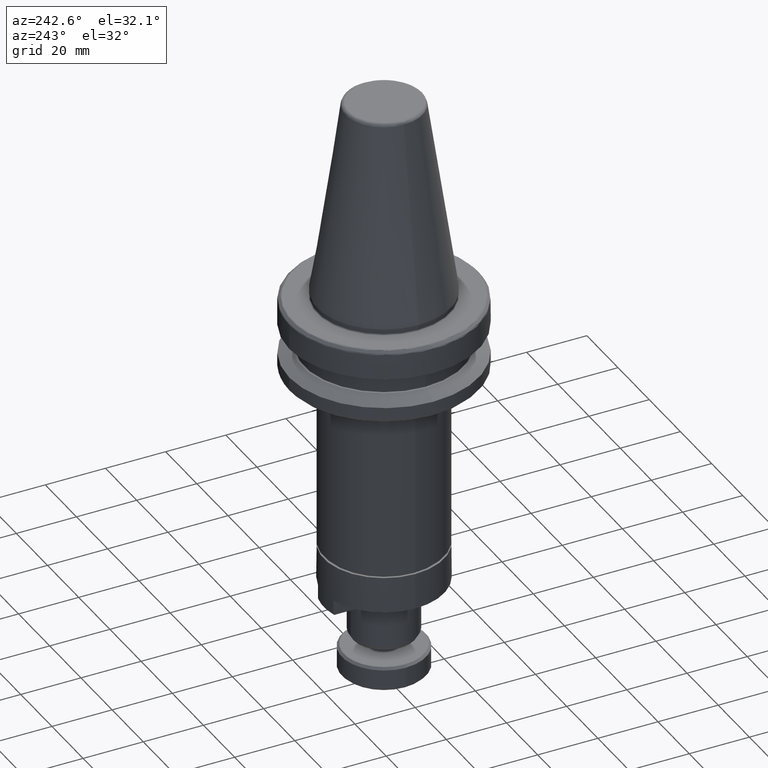
[diagram: clean part render]
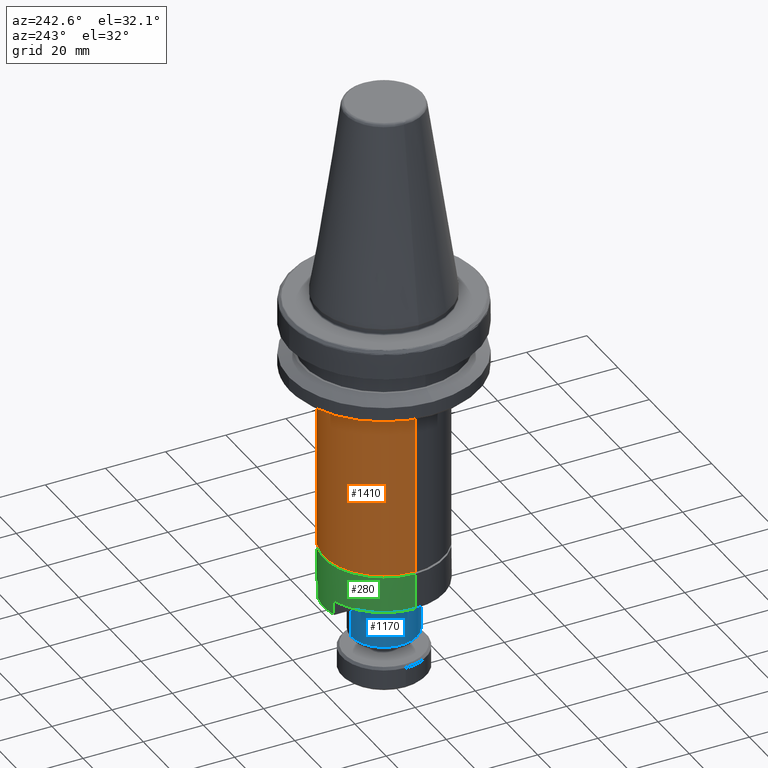
[diagram: same view with three faces highlighted in distinct colors, each labeled with its STEP entity id]
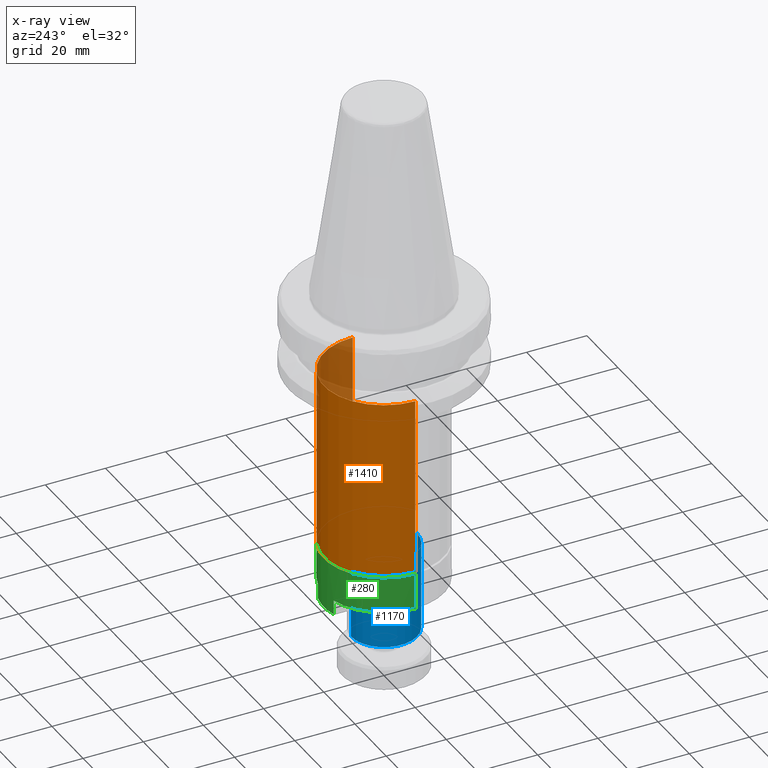
[diagram: x-ray of the same camera — body ghosted, the three highlighted faces saturated]
A machine part, auxiliary view with three faces highlighted in distinct colors.
The next image is the same camera in x-ray (body ghosted, the three faces saturated) — at least one of them is partly hidden behind the body in this view.
Their STEP definitions:

[orange] entity #1410 — the highlighted cylindrical surface (partial cylindrical patch) has radius 20 mm, axis along (0, 0, 1).
#56 = CIRCLE ( 'NONE', #1321, 20.00000000000000000 ) ;
#99 = LINE ( 'NONE', #3362, #1190 ) ;
#160 = DIRECTION ( 'NONE',  ( 0.0000000000000000000, 0.0000000000000000000, 1.000000000000000000 ) ) ;
#178 = DIRECTION ( 'NONE',  ( 0.0000000000000000000, 0.0000000000000000000, 1.000000000000000000 ) ) ;
#371 = FACE_OUTER_BOUND ( 'NONE', #3667, .T. ) ;
#424 = CARTESIAN_POINT ( 'NONE',  ( -20.00000000000000000, 2.449293598294706500E-015, -80.96158881059201900 ) ) ;
#425 = AXIS2_PLACEMENT_3D ( 'NONE', #1613, #3632, #1907 ) ;
#439 = EDGE_CURVE ( 'NONE', #2145, #856, #99, .T. ) ;
#440 = CARTESIAN_POINT ( 'NONE',  ( 0.0000000000000000000, 0.0000000000000000000, -80.96158881059201900 ) ) ;
#823 = CIRCLE ( 'NONE', #425, 20.00000000000000000 ) ;
#856 = VERTEX_POINT ( 'NONE', #3367 ) ;
#1070 = CARTESIAN_POINT ( 'NONE',  ( -20.00000000005410400, -6.153102855459935800E-009, -21.56158881043733900 ) ) ;
#1190 = VECTOR ( 'NONE', #160, 1000.000000000000000 ) ;
#1200 = CARTESIAN_POINT ( 'NONE',  ( -20.00000000000000000, 2.449293598294706500E-015, -80.96158881059197700 ) ) ;
#1279 = EDGE_CURVE ( 'NONE', #3093, #2773, #3564, .T. ) ;
#1321 = AXIS2_PLACEMENT_3D ( 'NONE', #3090, #1345, #3371 ) ;
#1345 = DIRECTION ( 'NONE',  ( 0.0000000000000000000, 0.0000000000000000000, 1.000000000000000000 ) ) ;
#1410 = ADVANCED_FACE ( 'NONE', ( #371 ), #3181, .T. ) ;
#1613 = CARTESIAN_POINT ( 'NONE',  ( 0.0000000000000000000, 0.0000000000000000000, -21.56158881059203100 ) ) ;
#1710 = DIRECTION ( 'NONE',  ( 1.000000000000000000, 0.0000000000000000000, 0.0000000000000000000 ) ) ;
#1754 = ORIENTED_EDGE ( 'NONE', *, *, #3435, .T. ) ;
#1907 = DIRECTION ( 'NONE',  ( 1.000000000000000000, 0.0000000000000000000, 1.734723475976807100E-016 ) ) ;
#1931 = ORIENTED_EDGE ( 'NONE', *, *, #2693, .F. ) ;
#1964 = ORIENTED_EDGE ( 'NONE', *, *, #439, .F. ) ;
#2145 = VERTEX_POINT ( 'NONE', #2521 ) ;
#2521 = CARTESIAN_POINT ( 'NONE',  ( 20.00000000000000000, 0.0000000000000000000, -80.96158881059201900 ) ) ;
#2693 = EDGE_CURVE ( 'NONE', #856, #2773, #823, .T. ) ;
#2773 = VERTEX_POINT ( 'NONE', #1070 ) ;
#3090 = CARTESIAN_POINT ( 'NONE',  ( 0.0000000000000000000, 0.0000000000000000000, -80.96158881059197700 ) ) ;
#3093 = VERTEX_POINT ( 'NONE', #1200 ) ;
#3098 = ORIENTED_EDGE ( 'NONE', *, *, #1279, .T. ) ;
#3111 = AXIS2_PLACEMENT_3D ( 'NONE', #440, #3588, #1710 ) ;
#3181 = CYLINDRICAL_SURFACE ( 'NONE', #3111, 20.00000000000000000 ) ;
#3362 = CARTESIAN_POINT ( 'NONE',  ( 20.00000000000000000, 0.0000000000000000000, -80.96158881059201900 ) ) ;
#3367 = CARTESIAN_POINT ( 'NONE',  ( 20.00000000005410100, -8.979362842873303400E-010, -21.56158881059203100 ) ) ;
#3371 = DIRECTION ( 'NONE',  ( 1.000000000000000000, 0.0000000000000000000, -2.775557561562891400E-015 ) ) ;
#3435 = EDGE_CURVE ( 'NONE', #2145, #3093, #56, .T. ) ;
#3564 = LINE ( 'NONE', #424, #3648 ) ;
#3588 = DIRECTION ( 'NONE',  ( 0.0000000000000000000, 0.0000000000000000000, 1.000000000000000000 ) ) ;
#3632 = DIRECTION ( 'NONE',  ( 0.0000000000000000000, 0.0000000000000000000, 1.000000000000000000 ) ) ;
#3648 = VECTOR ( 'NONE', #178, 1000.000000000000000 ) ;
#3667 = EDGE_LOOP ( 'NONE', ( #1754, #3098, #1931, #1964 ) ) ;

[blue] entity #1170 — the highlighted cylindrical surface (partial cylindrical patch) has radius 11 mm, axis along (0, -0, 1).
#21 = VERTEX_POINT ( 'NONE', #2839 ) ;
#144 = FACE_OUTER_BOUND ( 'NONE', #2276, .T. ) ;
#210 = AXIS2_PLACEMENT_3D ( 'NONE', #2810, #3334, #2684 ) ;
#342 = VERTEX_POINT ( 'NONE', #2753 ) ;
#502 = CARTESIAN_POINT ( 'NONE',  ( 0.0000000000000000000, -11.00000000000000000, -111.4893456245920800 ) ) ;
#634 = DIRECTION ( 'NONE',  ( 0.0000000000000000000, -6.308085367188390200E-016, 1.000000000000000000 ) ) ;
#642 = AXIS2_PLACEMENT_3D ( 'NONE', #2900, #1995, #1197 ) ;
#663 = AXIS2_PLACEMENT_3D ( 'NONE', #1691, #3427, #1414 ) ;
#828 = EDGE_CURVE ( 'NONE', #342, #21, #1300, .T. ) ;
#1021 = EDGE_CURVE ( 'NONE', #342, #2379, #2905, .T. ) ;
#1170 = ADVANCED_FACE ( 'NONE', ( #144 ), #3689, .T. ) ;
#1195 = CARTESIAN_POINT ( 'NONE',  ( 1.347111479062088400E-015, 11.00000000000000000, -111.4893456245920000 ) ) ;
#1197 = DIRECTION ( 'NONE',  ( 0.0000000000000000000, -1.000000000000000000, 0.0000000000000000000 ) ) ;
#1300 = LINE ( 'NONE', #1195, #1612 ) ;
#1414 = DIRECTION ( 'NONE',  ( 1.000000000000000000, 0.0000000000000000000, 5.046468293750711400E-015 ) ) ;
#1486 = ORIENTED_EDGE ( 'NONE', *, *, #2396, .T. ) ;
#1593 = VERTEX_POINT ( 'NONE', #1879 ) ;
#1612 = VECTOR ( 'NONE', #634, 1000.000000000000000 ) ;
#1631 = ORIENTED_EDGE ( 'NONE', *, *, #828, .F. ) ;
#1667 = LINE ( 'NONE', #3449, #3188 ) ;
#1691 = CARTESIAN_POINT ( 'NONE',  ( 0.0000000000000000000, 0.0000000000000000000, -111.4893456245920800 ) ) ;
#1805 = ORIENTED_EDGE ( 'NONE', *, *, #1021, .T. ) ;
#1829 = EDGE_CURVE ( 'NONE', #21, #1593, #3297, .T. ) ;
#1879 = CARTESIAN_POINT ( 'NONE',  ( 0.0000000000000000000, -11.00000000000001800, -81.96158881059201900 ) ) ;
#1995 = DIRECTION ( 'NONE',  ( 0.0000000000000000000, -6.308085367188390200E-016, 1.000000000000000000 ) ) ;
#2276 = EDGE_LOOP ( 'NONE', ( #1631, #1805, #1486, #2691 ) ) ;
#2379 = VERTEX_POINT ( 'NONE', #502 ) ;
#2396 = EDGE_CURVE ( 'NONE', #2379, #1593, #1667, .T. ) ;
#2684 = DIRECTION ( 'NONE',  ( 0.0000000000000000000, -1.000000000000000000, -1.261617073437677900E-015 ) ) ;
#2691 = ORIENTED_EDGE ( 'NONE', *, *, #1829, .F. ) ;
#2753 = CARTESIAN_POINT ( 'NONE',  ( 1.347111479062089600E-015, 11.00000000000000000, -111.4893456245920800 ) ) ;
#2781 = DIRECTION ( 'NONE',  ( 0.0000000000000000000, -6.308085367188390200E-016, 1.000000000000000000 ) ) ;
#2810 = CARTESIAN_POINT ( 'NONE',  ( 0.0000000000000000000, 0.0000000000000000000, -111.4893456245920200 ) ) ;
#2839 = CARTESIAN_POINT ( 'NONE',  ( 1.347111479062088400E-015, 10.99999999999998000, -81.96158881059201900 ) ) ;
#2900 = CARTESIAN_POINT ( 'NONE',  ( 0.0000000000000000000, -1.862636106842907400E-014, -81.96158881059201900 ) ) ;
#2905 = CIRCLE ( 'NONE', #663, 11.00000000000000000 ) ;
#3188 = VECTOR ( 'NONE', #2781, 1000.000000000000000 ) ;
#3297 = CIRCLE ( 'NONE', #642, 11.00000000000000000 ) ;
#3334 = DIRECTION ( 'NONE',  ( 0.0000000000000000000, -6.308085367188390200E-016, 1.000000000000000000 ) ) ;
#3427 = DIRECTION ( 'NONE',  ( 0.0000000000000000000, 0.0000000000000000000, 1.000000000000000000 ) ) ;
#3449 = CARTESIAN_POINT ( 'NONE',  ( 0.0000000000000000000, -11.00000000000000000, -111.4893456245920300 ) ) ;
#3689 = CYLINDRICAL_SURFACE ( 'NONE', #210, 11.00000000000000000 ) ;

[green] entity #280 — the highlighted cylindrical surface (partial cylindrical patch) has radius 20 mm, axis along (0, 0, 1).
#36 = EDGE_LOOP ( 'NONE', ( #964, #2343, #827, #1480, #325, #2277, #3699, #2951 ) ) ;
#96 = CARTESIAN_POINT ( 'NONE',  ( 0.0000000000000000000, -7.307522642552299900E-014, -93.76158880579203000 ) ) ;
#180 = CARTESIAN_POINT ( 'NONE',  ( 0.0000000000000000000, -7.307522642552299900E-014, -98.56158881059201300 ) ) ;
#280 = ADVANCED_FACE ( 'NONE', ( #3615 ), #1749, .T. ) ;
#325 = ORIENTED_EDGE ( 'NONE', *, *, #3079, .T. ) ;
#365 = DIRECTION ( 'NONE',  ( 0.0000000000000000000, 0.0000000000000000000, 1.000000000000000000 ) ) ;
#474 = DIRECTION ( 'NONE',  ( 1.000000000000000000, 5.329070518200751400E-015, 0.0000000000000000000 ) ) ;
#553 = AXIS2_PLACEMENT_3D ( 'NONE', #180, #2200, #474 ) ;
#664 = EDGE_CURVE ( 'NONE', #1048, #3228, #1043, .T. ) ;
#685 = CIRCLE ( 'NONE', #1000, 20.00000000000000000 ) ;
#719 = DIRECTION ( 'NONE',  ( -0.0000000000000000000, -0.0000000000000000000, 1.000000000000000000 ) ) ;
#755 = EDGE_CURVE ( 'NONE', #1505, #2119, #1212, .T. ) ;
#758 = CARTESIAN_POINT ( 'NONE',  ( 4.999999999821269200, 19.36491673051400400, -98.56158881077075800 ) ) ;
#811 = AXIS2_PLACEMENT_3D ( 'NONE', #2665, #927, #2955 ) ;
#822 = DIRECTION ( 'NONE',  ( -0.0000000000000000000, -0.0000000000000000000, -1.000000000000000000 ) ) ;
#827 = ORIENTED_EDGE ( 'NONE', *, *, #2772, .T. ) ;
#899 = CARTESIAN_POINT ( 'NONE',  ( 5.000000000000000000, 19.36491673101847200, -93.76158880819201600 ) ) ;
#918 = VECTOR ( 'NONE', #942, 1000.000000000000000 ) ;
#927 = DIRECTION ( 'NONE',  ( 0.0000000000000000000, 0.0000000000000000000, 1.000000000000000000 ) ) ;
#942 = DIRECTION ( 'NONE',  ( 0.0000000000000000000, 0.0000000000000000000, 1.000000000000000000 ) ) ;
#951 = VERTEX_POINT ( 'NONE', #2007 ) ;
#964 = ORIENTED_EDGE ( 'NONE', *, *, #664, .F. ) ;
#1000 = AXIS2_PLACEMENT_3D ( 'NONE', #1350, #3374, #1638 ) ;
#1043 = CIRCLE ( 'NONE', #3130, 20.00000000000000000 ) ;
#1048 = VERTEX_POINT ( 'NONE', #2591 ) ;
#1108 = EDGE_CURVE ( 'NONE', #1446, #3029, #3031, .T. ) ;
#1206 = EDGE_CURVE ( 'NONE', #3228, #951, #1525, .T. ) ;
#1212 = LINE ( 'NONE', #1509, #1266 ) ;
#1266 = VECTOR ( 'NONE', #365, 1000.000000000000000 ) ;
#1350 = CARTESIAN_POINT ( 'NONE',  ( 0.0000000000000000000, -7.307522642552299900E-014, -81.76158881059203100 ) ) ;
#1353 = VERTEX_POINT ( 'NONE', #1584 ) ;
#1446 = VERTEX_POINT ( 'NONE', #758 ) ;
#1480 = ORIENTED_EDGE ( 'NONE', *, *, #755, .F. ) ;
#1505 = VERTEX_POINT ( 'NONE', #1507 ) ;
#1507 = CARTESIAN_POINT ( 'NONE',  ( 20.00000000000000000, -7.307522642552299900E-014, -93.76158880579203000 ) ) ;
#1509 = CARTESIAN_POINT ( 'NONE',  ( 20.00000000000000000, -7.307522642552299900E-014, -98.56158881059202800 ) ) ;
#1525 = LINE ( 'NONE', #2867, #2610 ) ;
#1584 = CARTESIAN_POINT ( 'NONE',  ( -20.00000000000000000, -7.062593282722829600E-014, -81.76158881059203100 ) ) ;
#1638 = DIRECTION ( 'NONE',  ( 1.000000000000000000, 0.0000000000000000000, 0.0000000000000000000 ) ) ;
#1639 = AXIS2_PLACEMENT_3D ( 'NONE', #1782, #3295, #2155 ) ;
#1749 = CYLINDRICAL_SURFACE ( 'NONE', #1639, 20.00000000000000000 ) ;
#1782 = CARTESIAN_POINT ( 'NONE',  ( 0.0000000000000000000, -7.307522642552299900E-014, -98.56158881059202800 ) ) ;
#1820 = DIRECTION ( 'NONE',  ( -0.0000000000000000000, -0.0000000000000000000, -1.000000000000000000 ) ) ;
#1836 = CARTESIAN_POINT ( 'NONE',  ( -5.000000000305115900, 19.36491673087945000, -93.76158880819201600 ) ) ;
#2007 = CARTESIAN_POINT ( 'NONE',  ( -5.000000000610233600, 19.36491673087945000, -98.56158881059201300 ) ) ;
#2119 = VERTEX_POINT ( 'NONE', #3256 ) ;
#2155 = DIRECTION ( 'NONE',  ( 1.000000000000000000, 0.0000000000000000000, 0.0000000000000000000 ) ) ;
#2200 = DIRECTION ( 'NONE',  ( -0.0000000000000000000, -0.0000000000000000000, -1.000000000000000000 ) ) ;
#2277 = ORIENTED_EDGE ( 'NONE', *, *, #1108, .F. ) ;
#2343 = ORIENTED_EDGE ( 'NONE', *, *, #2350, .T. ) ;
#2350 = EDGE_CURVE ( 'NONE', #1048, #1353, #3518, .T. ) ;
#2416 = CIRCLE ( 'NONE', #811, 20.00000000000000000 ) ;
#2591 = CARTESIAN_POINT ( 'NONE',  ( -20.00000000000000000, -7.062593282722829600E-014, -93.76158880579203000 ) ) ;
#2610 = VECTOR ( 'NONE', #822, 1000.000000000000000 ) ;
#2665 = CARTESIAN_POINT ( 'NONE',  ( 0.0000000000000000000, -7.307522642552299900E-014, -93.76158880579203000 ) ) ;
#2772 = EDGE_CURVE ( 'NONE', #1353, #2119, #685, .T. ) ;
#2860 = CARTESIAN_POINT ( 'NONE',  ( 5.000000000000000000, 19.36491673099993000, -96.16158881059203600 ) ) ;
#2867 = CARTESIAN_POINT ( 'NONE',  ( -5.000000001220465500, 19.36491673072188700, -90.16158881059202200 ) ) ;
#2924 = VECTOR ( 'NONE', #719, 1000.000000000000000 ) ;
#2951 = ORIENTED_EDGE ( 'NONE', *, *, #1206, .F. ) ;
#2955 = DIRECTION ( 'NONE',  ( 1.000000000000000000, 0.0000000000000000000, 0.0000000000000000000 ) ) ;
#2964 = CARTESIAN_POINT ( 'NONE',  ( -20.00000000000000000, -7.062593282722829600E-014, -98.56158881059202800 ) ) ;
#3029 = VERTEX_POINT ( 'NONE', #899 ) ;
#3031 = LINE ( 'NONE', #2860, #2924 ) ;
#3079 = EDGE_CURVE ( 'NONE', #1505, #3029, #2416, .T. ) ;
#3130 = AXIS2_PLACEMENT_3D ( 'NONE', #96, #1820, #3547 ) ;
#3228 = VERTEX_POINT ( 'NONE', #1836 ) ;
#3256 = CARTESIAN_POINT ( 'NONE',  ( 20.00000000000000000, -7.307522642552299900E-014, -81.76158881059203100 ) ) ;
#3295 = DIRECTION ( 'NONE',  ( 0.0000000000000000000, 0.0000000000000000000, 1.000000000000000000 ) ) ;
#3374 = DIRECTION ( 'NONE',  ( -0.0000000000000000000, -0.0000000000000000000, -1.000000000000000000 ) ) ;
#3412 = EDGE_CURVE ( 'NONE', #951, #1446, #3660, .T. ) ;
#3518 = LINE ( 'NONE', #2964, #918 ) ;
#3547 = DIRECTION ( 'NONE',  ( 1.000000000000000000, 8.881784197001254300E-016, 0.0000000000000000000 ) ) ;
#3615 = FACE_OUTER_BOUND ( 'NONE', #36, .T. ) ;
#3660 = CIRCLE ( 'NONE', #553, 20.00000000000000000 ) ;
#3699 = ORIENTED_EDGE ( 'NONE', *, *, #3412, .F. ) ;